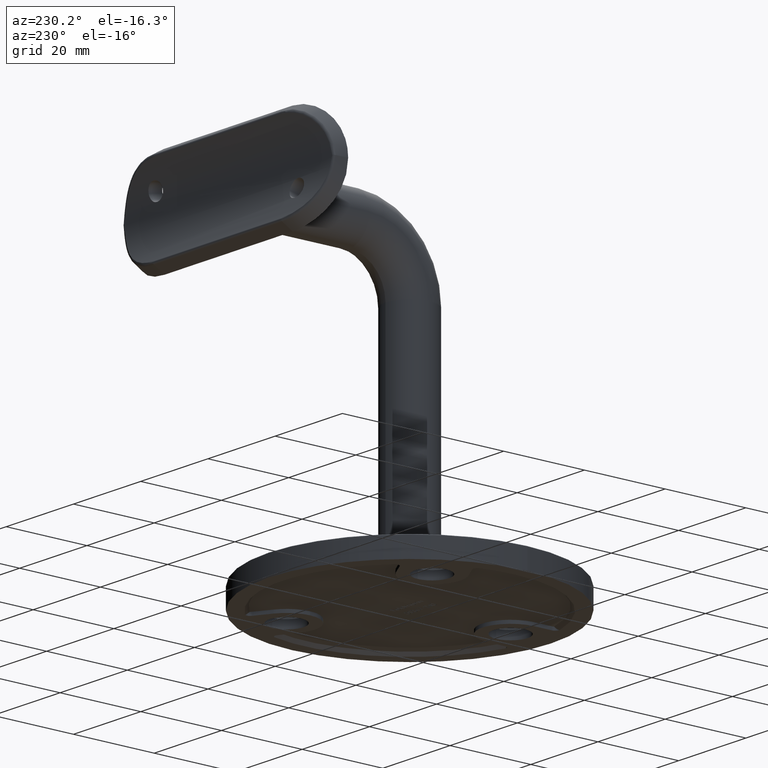
[diagram: clean part render]
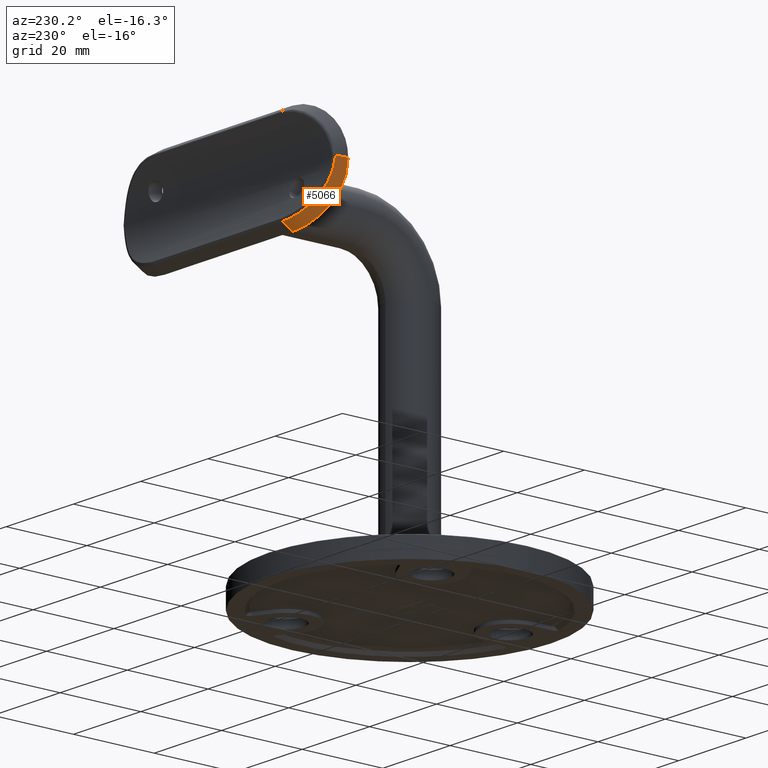
[diagram: same view with one face highlighted and labeled with its STEP entity id]
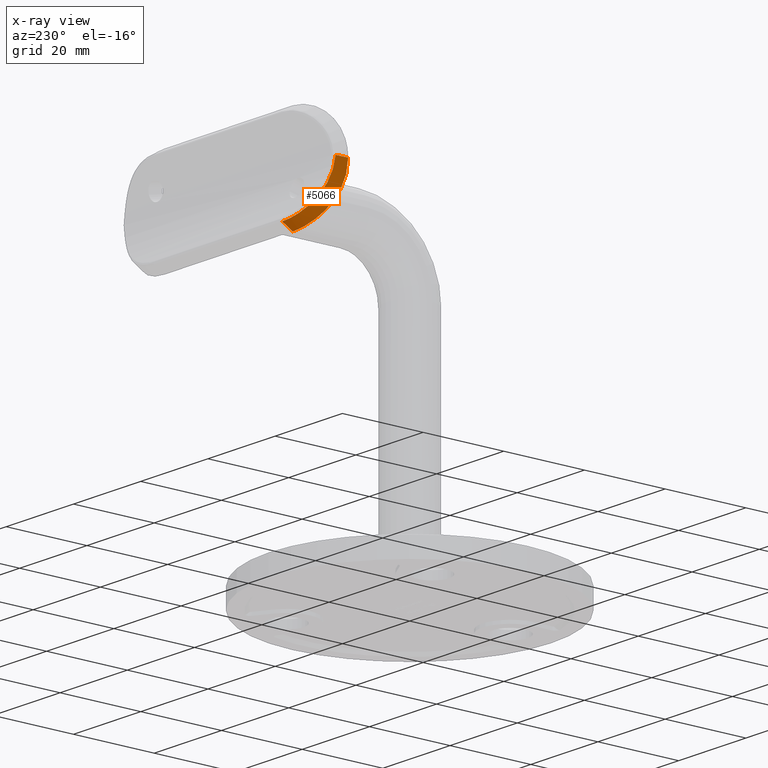
[diagram: x-ray of the same camera — body ghosted, the highlighted face saturated]
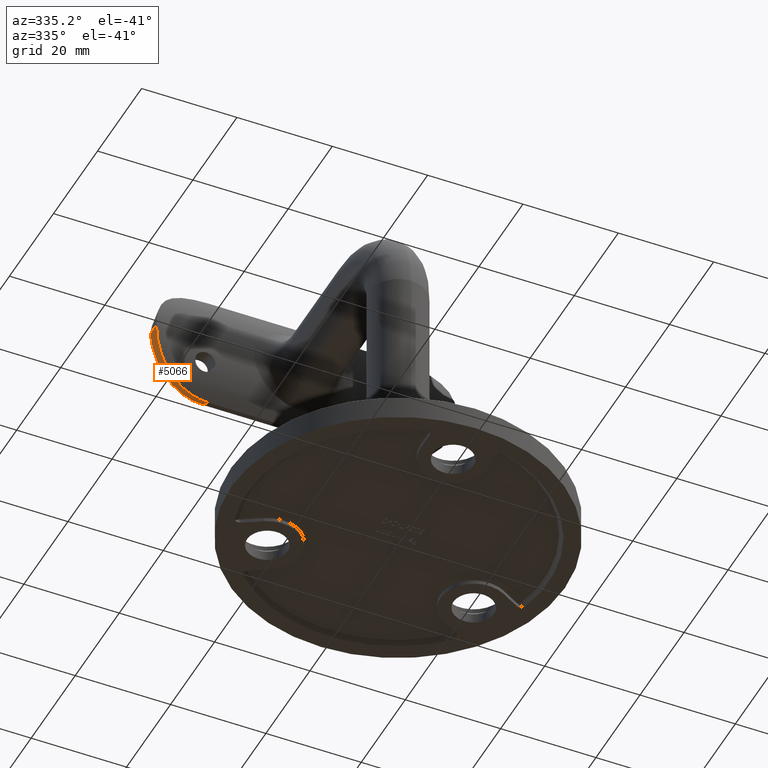
[diagram: same view with one face highlighted and labeled with its STEP entity id]
A machine part, auxiliary view. The second image highlights one B-rep face of the part: STEP entity #5066.
The next image is the same camera in x-ray: the body ghosted, the highlighted face saturated — about 0% of this face is hidden behind the body in this view.
A second angle (auxiliary view) of the same face is appended — the face is thin or edge-on in the first view.
In plain terms, the highlighted cylindrical surface (partial cylindrical patch) has radius 12.45 mm, axis along (-0, 0.8625, 0.5061).
Its self-contained STEP definition (entity closure, byte-faithful):
#304 = CARTESIAN_POINT ( 'NONE',  ( -31.47039769375050611, 43.55714722751921641, 75.00000000000001421 ) ) ;
#333 = FACE_OUTER_BOUND ( 'NONE', #3232, .T. ) ;
#514 = CARTESIAN_POINT ( 'NONE',  ( -27.76184477868658362, 43.32093708120258668, 65.68707166927234198 ) ) ;
#1169 = CARTESIAN_POINT ( 'NONE',  ( -30.52124773418950454, 44.88577569098780629, 71.25368061827980171 ) ) ;
#1303 = CYLINDRICAL_SURFACE ( 'NONE', #7313, 12.44999999999999396 ) ;
#1617 = EDGE_CURVE ( 'NONE', #10762, #14654, #4490, .T. ) ;
#1804 = CARTESIAN_POINT ( 'NONE',  ( -29.35906535816679508, 42.65880499650769053, 67.51469781237690881 ) ) ;
#2459 = CARTESIAN_POINT ( 'NONE',  ( -27.19719956860833676, 46.18228487170826213, 66.76530238781263904 ) ) ;
#2565 = CARTESIAN_POINT ( 'NONE',  ( -21.72992177757643972, 47.35115153175508595, 64.27164063788477222 ) ) ;
#2672 = CARTESIAN_POINT ( 'NONE',  ( -26.28313118088842870, 46.46148909282378270, 66.09572870158777391 ) ) ;
#2689 = CARTESIAN_POINT ( 'NONE',  ( -31.41129862774965531, 44.53021197418444643, 75.00000000000001421 ) ) ;
#2808 = ORIENTED_EDGE ( 'NONE', *, *, #1617, .T. ) ;
#3232 = EDGE_LOOP ( 'NONE', ( #10831, #2808, #12308, #9092, #14864 ) ) ;
#3278 = CARTESIAN_POINT ( 'NONE',  ( -22.36536429864082010, 44.67587406150044416, 62.88315460766730070 ) ) ;
#3334 = CARTESIAN_POINT ( 'NONE',  ( -29.11861682195713641, 42.76763743499584081, 67.18168762880490874 ) ) ;
#3395 = DIRECTION ( 'NONE',  ( -0.000000000000000000, 0.8624907220958674126, 0.5060728744939302359 ) ) ;
#3559 = CARTESIAN_POINT ( 'NONE',  ( -31.37080512054731685, 44.53617917393412995, 74.61229562751526601 ) ) ;
#3656 = CARTESIAN_POINT ( 'NONE',  ( -19.04999999999999716, 47.48892025464769517, 64.02113417683467844 ) ) ;
#3722 = CARTESIAN_POINT ( 'NONE',  ( -26.89949532546801336, 46.27717715450238956, 66.53161698677273250 ) ) ;
#3985 = CARTESIAN_POINT ( 'NONE',  ( -31.50000000000000000, 42.57884719898812165, 75.00000000000001421 ) ) ;
#4138 = CARTESIAN_POINT ( 'NONE',  ( -26.49022153365132581, 43.75691971962949367, 64.68224049439521650 ) ) ;
#4178 = CARTESIAN_POINT ( 'NONE',  ( -31.50000000000000000, 41.50006793715025566, 74.94206822453736550 ) ) ;
#4253 = CARTESIAN_POINT ( 'NONE',  ( -23.56716310814718085, 44.48283103672177674, 63.23217238623349346 ) ) ;
#4490 = B_SPLINE_CURVE_WITH_KNOTS ( 'NONE', 3,
 ( #13630, #3559, #7496, #14897, #8667, #12486, #1169, #9918, #6197, #14946, #16204, #8720, #9977, #2459, #3722, #2672, #7615, #8928, #12651, #13967, #11446, #8824, #2565, #11350, #10191, #11555 ),
 .UNSPECIFIED., .F., .F.,
 ( 4, 2, 2, 2, 2, 2, 2, 2, 2, 2, 2, 2, 4 ),
 ( 0.000000000000000000, 0.001165333758870333277, 0.002330667517740666553, 0.004661335035481294943, 0.005826668794351626268, 0.006992002553221954991, 0.009322670070962612437, 0.01048800382983293943, 0.01165333758870326988, 0.01398400510644392560, 0.01514933886531425605, 0.01631467262418458478, 0.01864534014192525263 ),
 .UNSPECIFIED. ) ;
#4537 = CARTESIAN_POINT ( 'NONE',  ( -27.45985867694584570, 43.43162678261797538, 65.42054316380411194 ) ) ;
#4545 = CARTESIAN_POINT ( 'NONE',  ( -19.04999999999999716, 47.91519669156754446, 64.27125506072874828 ) ) ;
#5066 = ADVANCED_FACE ( 'NONE', ( #333 ), #1303, .T. ) ;
#5289 = LINE ( 'NONE', #4545, #10193 ) ;
#5480 = CARTESIAN_POINT ( 'NONE',  ( -31.14613448684934482, 41.72781713171702478, 71.62829317528465367 ) ) ;
#5804 = CARTESIAN_POINT ( 'NONE',  ( -21.95871173106137419, 44.72763345591846473, 62.79203011645144272 ) ) ;
#5909 = CARTESIAN_POINT ( 'NONE',  ( -19.04999999999999716, 44.89647916423201224, 62.50000000000000000 ) ) ;
#6197 = CARTESIAN_POINT ( 'NONE',  ( -29.84658590793110378, 45.18068973757122109, 69.90023832623678857 ) ) ;
#6463 = EDGE_CURVE ( 'NONE', #15241, #10762, #9925, .T. ) ;
#7066 = CARTESIAN_POINT ( 'NONE',  ( -19.89617486812062452, 44.89647916423202645, 62.49999999999998579 ) ) ;
#7098 = EDGE_CURVE ( 'NONE', #15241, #14988, #7906, .T. ) ;
#7313 = AXIS2_PLACEMENT_3D ( 'NONE', #12842, #10224, #9074 ) ;
#7407 = VERTEX_POINT ( 'NONE', #5909 ) ;
#7496 = CARTESIAN_POINT ( 'NONE',  ( -31.31604756240333742, 44.55196891691795713, 74.22773770193354892 ) ) ;
#7615 = CARTESIAN_POINT ( 'NONE',  ( -25.96593942597468896, 46.55052444551975555, 65.89428268208790485 ) ) ;
#7678 = CARTESIAN_POINT ( 'NONE',  ( -31.50000000000000000, 41.59879999999998290, 75.00000000000001421 ) ) ;
#7764 = CARTESIAN_POINT ( 'NONE',  ( -31.41129862774965531, 44.53021197418444643, 75.00000000000001421 ) ) ;
#7906 = LINE ( 'NONE', #12552, #9081 ) ;
#8005 = CARTESIAN_POINT ( 'NONE',  ( -28.60672686285701971, 42.98767845030398149, 66.55075435409122520 ) ) ;
#8062 = CARTESIAN_POINT ( 'NONE',  ( -31.23225478127941201, 41.67518559806848089, 72.03467075880064385 ) ) ;
#8667 = CARTESIAN_POINT ( 'NONE',  ( -31.09021188951017578, 44.63681860130486001, 73.08616243760464215 ) ) ;
#8720 = CARTESIAN_POINT ( 'NONE',  ( -28.55315136873973714, 45.70791821285619250, 68.04424266218667583 ) ) ;
#8824 = CARTESIAN_POINT ( 'NONE',  ( -22.10465821156562427, 47.30897022918587425, 64.34959391656134642 ) ) ;
#8928 = CARTESIAN_POINT ( 'NONE',  ( -24.98813571913963827, 46.80514796101536490, 65.33638954345882155 ) ) ;
#9074 = DIRECTION ( 'NONE',  ( 0.000000000000000000, -0.5060728744939304580, 0.8624907220958673015 ) ) ;
#9081 = VECTOR ( 'NONE', #12387, 999.9999999999998863 ) ;
#9092 = ORIENTED_EDGE ( 'NONE', *, *, #9386, .F. ) ;
#9313 = CARTESIAN_POINT ( 'NONE',  ( -30.01654549520749171, 42.34887060729328567, 68.54058277997886250 ) ) ;
#9386 = EDGE_CURVE ( 'NONE', #14988, #7407, #14437, .T. ) ;
#9918 = CARTESIAN_POINT ( 'NONE',  ( -30.02749832514715678, 45.10227887267533475, 70.23244285910152485 ) ) ;
#9925 =( BOUNDED_CURVE ( )  B_SPLINE_CURVE ( 3, ( #7678, #3985, #304, #2689 ),
 .UNSPECIFIED., .F., .T. ) 
 B_SPLINE_CURVE_WITH_KNOTS ( ( 4, 4 ),
 ( 4.712388980384689674, 4.831830048112177423 ),
 .UNSPECIFIED. ) 
 CURVE ( )  GEOMETRIC_REPRESENTATION_ITEM ( )  RATIONAL_B_SPLINE_CURVE ( ( 1.000000000000000000, 0.9988115059092006476, 0.9988115059092006476, 1.000000000000000000 ) ) 
 REPRESENTATION_ITEM ( '' )  );
#9977 = CARTESIAN_POINT ( 'NONE',  ( -28.04390794182488733, 45.89827738672774160, 67.50184038735456227 ) ) ;
#10191 = CARTESIAN_POINT ( 'NONE',  ( -19.82955115598799267, 47.48892025464769517, 64.02113417683467844 ) ) ;
#10193 = VECTOR ( 'NONE', #3395, 999.9999999999998863 ) ;
#10224 = DIRECTION ( 'NONE',  ( -0.000000000000000000, 0.8624907220958674126, 0.5060728744939303470 ) ) ;
#10529 = CARTESIAN_POINT ( 'NONE',  ( -26.82499121423021293, 43.64934244133861085, 64.91869770741266166 ) ) ;
#10592 = CARTESIAN_POINT ( 'NONE',  ( -23.17194272048142878, 44.55313305107949162, 63.10382032021133369 ) ) ;
#10762 = VERTEX_POINT ( 'NONE', #7764 ) ;
#10831 = ORIENTED_EDGE ( 'NONE', *, *, #6463, .T. ) ;
#10868 = CARTESIAN_POINT ( 'NONE',  ( -31.50000000000000000, 41.50006793715025566, 74.94206822453736550 ) ) ;
#10923 = CARTESIAN_POINT ( 'NONE',  ( -30.37698696215503347, 42.16146160936771281, 69.26784409181281887 ) ) ;
#11350 = CARTESIAN_POINT ( 'NONE',  ( -20.59678938111750668, 47.45330594478250674, 64.08437560408599154 ) ) ;
#11446 = CARTESIAN_POINT ( 'NONE',  ( -22.84806790810517896, 47.20908556298287095, 64.53772657573090044 ) ) ;
#11555 = CARTESIAN_POINT ( 'NONE',  ( -19.04999999999999716, 47.48892025464769517, 64.02113417683467844 ) ) ;
#11782 = CARTESIAN_POINT ( 'NONE',  ( -31.43622365621249415, 41.54731936116489521, 73.26387409696171460 ) ) ;
#12056 = CARTESIAN_POINT ( 'NONE',  ( -24.72123905342253281, 44.25004455545106197, 63.66870554217586431 ) ) ;
#12107 = CARTESIAN_POINT ( 'NONE',  ( -28.33527914990188279, 43.09896607779018751, 66.25217822195308770 ) ) ;
#12308 = ORIENTED_EDGE ( 'NONE', *, *, #15462, .F. ) ;
#12387 = DIRECTION ( 'NONE',  ( 0.000000000000000000, -0.8624907220958674126, -0.5060728744939302359 ) ) ;
#12486 = CARTESIAN_POINT ( 'NONE',  ( -30.78533202059056606, 44.76635532544159446, 71.96722588269460630 ) ) ;
#12552 = CARTESIAN_POINT ( 'NONE',  ( -31.50000000000000000, 59.89939271255051523, 85.73800949009361716 ) ) ;
#12651 = CARTESIAN_POINT ( 'NONE',  ( -24.30151574646685830, 46.95827799316676021, 65.02595951822586073 ) ) ;
#12842 = CARTESIAN_POINT ( 'NONE',  ( -19.04999999999999716, 41.61458940411811369, 75.00926455082229438 ) ) ;
#12920 = CARTESIAN_POINT ( 'NONE',  ( -25.45236259948298496, 44.06513148340400932, 64.02868966350774826 ) ) ;
#12968 = CARTESIAN_POINT ( 'NONE',  ( -31.50000000000000000, 41.50205063347895873, 74.09672101691496948 ) ) ;
#13020 = CARTESIAN_POINT ( 'NONE',  ( -19.04999999999999716, 44.89647916423201224, 62.50000000000000000 ) ) ;
#13630 = CARTESIAN_POINT ( 'NONE',  ( -31.41129862774965531, 44.53021197418444643, 75.00000000000001421 ) ) ;
#13967 = CARTESIAN_POINT ( 'NONE',  ( -23.21861327351692950, 47.15100939030340754, 64.64864057989120738 ) ) ;
#14437 = B_SPLINE_CURVE_WITH_KNOTS ( 'NONE', 3,
 ( #10868, #12968, #11782, #8062, #5480, #15488, #15539, #10923, #9313, #1804, #3334, #8005, #12107, #514, #4537, #10529, #4138, #12920, #12056, #4253, #10592, #3278, #5804, #15437, #7066, #13020 ),
 .UNSPECIFIED., .F., .F.,
 ( 4, 2, 2, 2, 2, 2, 2, 2, 2, 2, 2, 2, 4 ),
 ( 0.000000000000000000, 0.002503786883920749128, 0.003755680325881143641, 0.005007573767841538154, 0.007511360651762282944, 0.008763254093722656207, 0.01001514753568302774, 0.01126704097764340100, 0.01251893441960377253, 0.01502272130352452946, 0.01627461474548489578, 0.01752650818744526384, 0.02003029507136600690 ),
 .UNSPECIFIED. ) ;
#14654 = VERTEX_POINT ( 'NONE', #3656 ) ;
#14864 = ORIENTED_EDGE ( 'NONE', *, *, #7098, .F. ) ;
#14897 = CARTESIAN_POINT ( 'NONE',  ( -31.17590497647229597, 44.60222045479014952, 73.46522877290213671 ) ) ;
#14946 = CARTESIAN_POINT ( 'NONE',  ( -29.45014886445938984, 45.34799967957319922, 69.25271361464513120 ) ) ;
#14988 = VERTEX_POINT ( 'NONE', #4178 ) ;
#15241 = VERTEX_POINT ( 'NONE', #15846 ) ;
#15437 = CARTESIAN_POINT ( 'NONE',  ( -20.72896249482251818, 44.85290725814719082, 62.57342178253337295 ) ) ;
#15462 = EDGE_CURVE ( 'NONE', #7407, #14654, #5289, .T. ) ;
#15488 = CARTESIAN_POINT ( 'NONE',  ( -30.93423618829848110, 41.85239300508860083, 70.82265935410380564 ) ) ;
#15539 = CARTESIAN_POINT ( 'NONE',  ( -30.80823856287334550, 41.92441803994973526, 70.42388206781113524 ) ) ;
#15846 = CARTESIAN_POINT ( 'NONE',  ( -31.50000000000000000, 41.59879999999998290, 75.00000000000001421 ) ) ;
#16204 = CARTESIAN_POINT ( 'NONE',  ( -29.23539561015785893, 45.43653037844532605, 68.93909865699414752 ) ) ;